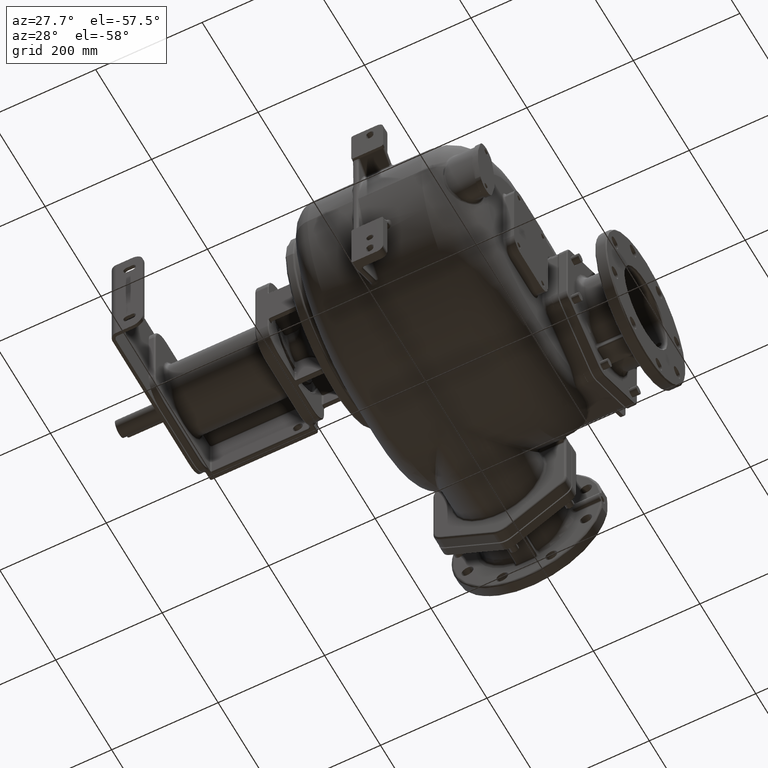
[diagram: clean part render]
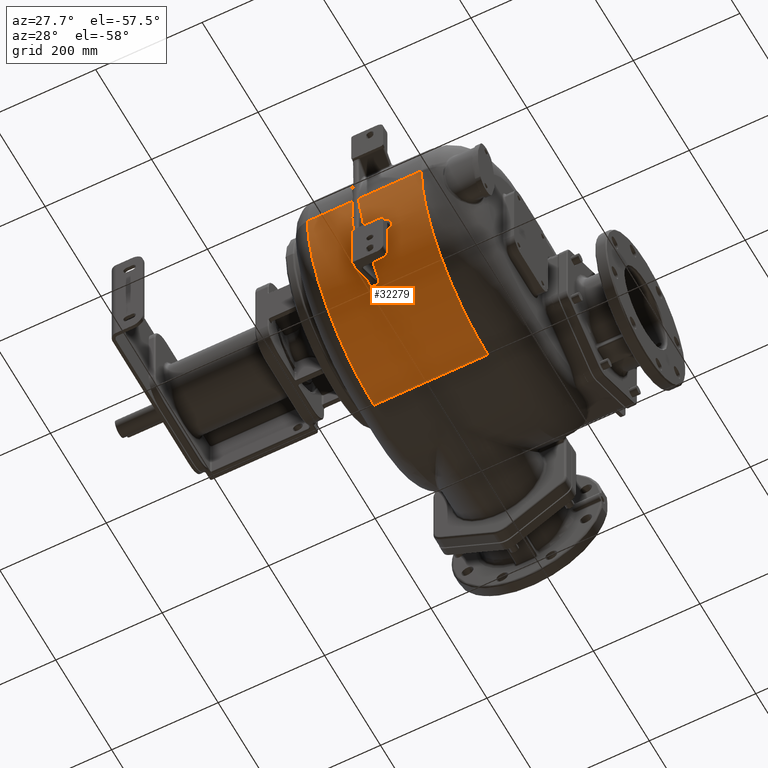
[diagram: same view with one face highlighted and labeled with its STEP entity id]
A machine part, auxiliary view. The second image highlights one B-rep face of the part: STEP entity #32279.
In plain terms, the highlighted cylindrical surface (partial cylindrical patch) has radius 238 mm, axis along (-1, 0, 0).
Its self-contained STEP definition (entity closure, byte-faithful):
#6964=DIRECTION('',(-9.999999999999E-1,-3.922041858622E-7,-4.513141593375E-11));
#6965=VECTOR('',#6964,8.512701665594E1);
#6966=CARTESIAN_POINT('',(-3.487298334407E1,5.000033387172E0,
-1.299999999617E1));
#6967=LINE('',#6966,#6965);
#6978=DIRECTION('',(-1.E0,2.893217573782E-7,-2.821944856275E-11));
#6979=VECTOR('',#6978,1.181270166560E2);
#6980=CARTESIAN_POINT('',(9.4E1,5.E0,-1.300000000004E1));
#6981=LINE('',#6980,#6979);
#7254=CARTESIAN_POINT('',(-3.487298334407E1,5.000033387172E0,
-1.299999999617E1));
#7255=CARTESIAN_POINT('',(-3.487332535110E1,5.000076042464E0,
-1.369852855020E1));
#7256=CARTESIAN_POINT('',(-3.488625641344E1,5.006151664949E0,
-1.512043404627E1));
#7257=CARTESIAN_POINT('',(-3.494085451460E1,5.035539256813E0,
-1.731015029306E1));
#7258=CARTESIAN_POINT('',(-3.503386178475E1,5.087860928933E0,
-1.960903720853E1));
#7259=CARTESIAN_POINT('',(-3.516891551642E1,5.167661207005E0,
-2.205013471588E1));
#7260=CARTESIAN_POINT('',(-3.535147360663E1,5.281194993081E0,
-2.467257113644E1));
#7261=CARTESIAN_POINT('',(-3.558642737679E1,5.436513644653E0,
-2.750846466196E1));
#7262=CARTESIAN_POINT('',(-3.587448628616E1,5.642747172982E0,
-3.057691238464E1));
#7263=CARTESIAN_POINT('',(-3.621480318520E1,5.911561748767E0,
-3.390752537193E1));
#7264=CARTESIAN_POINT('',(-3.659761215140E1,6.254386252305E0,
-3.749567271010E1));
#7265=CARTESIAN_POINT('',(-3.699440787981E1,6.663286226819E0,
-4.116837732563E1));
#7266=CARTESIAN_POINT('',(-3.737541264840E1,7.119090398356E0,
-4.475535152115E1));
#7267=CARTESIAN_POINT('',(-3.772540349546E1,7.609571564118E0,
-4.820251676713E1));
#7268=CARTESIAN_POINT('',(-3.803676824961E1,8.125632024676E0,
-5.149077304522E1));
#7269=CARTESIAN_POINT('',(-3.830476451348E1,8.658069082577E0,
-5.460545228396E1));
#7270=CARTESIAN_POINT('',(-3.852812990866E1,9.200932212432E0,
-5.755135906392E1));
#7271=CARTESIAN_POINT('',(-3.870666032480E1,9.748104384360E0,
-6.032941512412E1));
#7272=CARTESIAN_POINT('',(-3.884190270636E1,1.029458392802E1,
-6.294425747014E1));
#7273=CARTESIAN_POINT('',(-3.893508807572E1,1.083585341209E1,
-6.540026104949E1));
#7274=CARTESIAN_POINT('',(-3.898873278251E1,1.136776381419E1,
-6.770149815791E1));
#7275=CARTESIAN_POINT('',(-3.899997952555E1,1.171402944938E1,
-6.913644806690E1));
#7276=CARTESIAN_POINT('',(-3.899999999943E1,1.188431873015E1,
-6.982896686279E1));
#7278=CARTESIAN_POINT('',(-3.9E1,2.43E2,-1.3E1));
#7279=DIRECTION('',(1.E0,0.E0,0.E0));
#7280=DIRECTION('',(0.E0,-9.710743801653E-1,-2.387771936065E-1));
#7281=AXIS2_PLACEMENT_3D('',#7278,#7279,#7280);
#7283=CARTESIAN_POINT('',(-3.899999999980E1,6.888906075237E1,
-1.752632804800E2));
#7284=CARTESIAN_POINT('',(-3.900000178895E1,6.895656478788E1,
-1.753357052236E2));
#7285=CARTESIAN_POINT('',(-3.899646586419E1,6.909158909080E1,
-1.754804580390E2));
#7286=CARTESIAN_POINT('',(-3.898020895290E1,6.929445461058E1,
-1.756973000808E2));
#7287=CARTESIAN_POINT('',(-3.895318271723E1,6.949719011402E1,
-1.759134878866E2));
#7288=CARTESIAN_POINT('',(-3.891537244181E1,6.969955202654E1,
-1.761287332274E2));
#7289=CARTESIAN_POINT('',(-3.886682680016E1,6.990123578678E1,
-1.763427271589E2));
#7290=CARTESIAN_POINT('',(-3.880758686656E1,7.010195078852E1,
-1.765551675793E2));
#7291=CARTESIAN_POINT('',(-3.873770769350E1,7.030140075133E1,
-1.767657522817E2));
#7292=CARTESIAN_POINT('',(-3.865724194588E1,7.049929089173E1,
-1.769741827594E2));
#7293=CARTESIAN_POINT('',(-3.856633166443E1,7.069531926278E1,
-1.771801560167E2));
#7294=CARTESIAN_POINT('',(-3.846514287816E1,7.088918229110E1,
-1.773833701063E2));
#7295=CARTESIAN_POINT('',(-3.835384651645E1,7.108057837637E1,
-1.775835278731E2));
#7296=CARTESIAN_POINT('',(-3.823262355415E1,7.126920656600E1,
-1.777803354125E2));
#7297=CARTESIAN_POINT('',(-3.810166730310E1,7.145476349393E1,
-1.779734987764E2));
#7298=CARTESIAN_POINT('',(-3.796117545493E1,7.163695336761E1,
-1.781627342142E2));
#7299=CARTESIAN_POINT('',(-3.781136711366E1,7.181547469736E1,
-1.783477542448E2));
#7300=CARTESIAN_POINT('',(-3.765239857441E1,7.199009165340E1,
-1.785283413037E2));
#7301=CARTESIAN_POINT('',(-3.748446854684E1,7.216062131279E1,
-1.787043336583E2));
#7302=CARTESIAN_POINT('',(-3.730780431674E1,7.232688118568E1,
-1.788755707891E2));
#7303=CARTESIAN_POINT('',(-3.712261687219E1,7.248867746011E1,
-1.790418811473E2));
#7304=CARTESIAN_POINT('',(-3.692929042815E1,7.264567267945E1,
-1.792029466471E2));
#7305=CARTESIAN_POINT('',(-3.672821179213E1,7.279755771084E1,
-1.793584798720E2));
#7306=CARTESIAN_POINT('',(-3.651982123675E1,7.294401118769E1,
-1.795081821428E2));
#7307=CARTESIAN_POINT('',(-3.630440846733E1,7.308484562613E1,
-1.796518924495E2));
#7308=CARTESIAN_POINT('',(-3.608204424356E1,7.321998321375E1,
-1.797895613261E2));
#7309=CARTESIAN_POINT('',(-3.585288575298E1,7.334933536140E1,
-1.799211275432E2));
#7310=CARTESIAN_POINT('',(-3.561708672570E1,7.347284584958E1,
-1.800465618510E2));
#7311=CARTESIAN_POINT('',(-3.537517542224E1,7.359023582020E1,
-1.801656083458E2));
#7312=CARTESIAN_POINT('',(-3.512772651156E1,7.370123982364E1,
-1.802780249391E2));
#7313=CARTESIAN_POINT('',(-3.487535966191E1,7.380560322044E1,
-1.803835803298E2));
#7314=CARTESIAN_POINT('',(-3.461854599973E1,7.390316204359E1,
-1.804821344332E2));
#7315=CARTESIAN_POINT('',(-3.435738808636E1,7.399388794282E1,
-1.805736829100E2));
#7316=CARTESIAN_POINT('',(-3.409202182421E1,7.407769479246E1,
-1.806581615419E2));
#7317=CARTESIAN_POINT('',(-3.382256271717E1,7.415452583842E1,
-1.807355342758E2));
#7318=CARTESIAN_POINT('',(-3.354933744492E1,7.422434921785E1,
-1.808057884703E2));
#7319=CARTESIAN_POINT('',(-3.327269457322E1,7.428709599987E1,
-1.808688725364E2));
#7320=CARTESIAN_POINT('',(-3.299294963796E1,7.434269846426E1,
-1.809247344440E2));
#7321=CARTESIAN_POINT('',(-3.271049059383E1,7.439106095828E1,
-1.809732925979E2));
#7322=CARTESIAN_POINT('',(-3.242606176194E1,7.443203780044E1,
-1.810144129686E2));
#7323=CARTESIAN_POINT('',(-3.214037630943E1,7.446552642337E1,
-1.810480052996E2));
#7324=CARTESIAN_POINT('',(-3.185415438625E1,7.449144032876E1,
-1.810739854161E2));
#7325=CARTESIAN_POINT('',(-3.156814278833E1,7.450977036486E1,
-1.810923752748E2));
#7326=CARTESIAN_POINT('',(-3.128300957743E1,7.452055699754E1,
-1.811031305012E2));
#7327=CARTESIAN_POINT('',(-3.109416571180E1,7.452305344983E1,
-1.811057715726E2));
#7328=CARTESIAN_POINT('',(-3.100000001687E1,7.452303650173E1,
-1.811057691184E2));
#7330=DIRECTION('',(9.999999999980E-1,1.407185204663E-6,1.403730886977E-6));
#7331=VECTOR('',#7330,3.000000029967E0);
#7332=CARTESIAN_POINT('',(-3.100000001687E1,7.452303650173E1,
-1.811057691184E2));
#7333=LINE('',#7332,#7331);
#7334=CARTESIAN_POINT('',(-2.799999998691E1,7.452304072328E1,
-1.811057649072E2));
#7335=CARTESIAN_POINT('',(-2.790586306895E1,7.452305457010E1,
-1.811057665749E2));
#7336=CARTESIAN_POINT('',(-2.771708016693E1,7.452057344447E1,
-1.811031498254E2));
#7337=CARTESIAN_POINT('',(-2.743205461887E1,7.450977998007E1,
-1.810923841517E2));
#7338=CARTESIAN_POINT('',(-2.714614915088E1,7.449146372303E1,
-1.810740090731E2));
#7339=CARTESIAN_POINT('',(-2.686002077320E1,7.446556956401E1,
-1.810480485083E2));
#7340=CARTESIAN_POINT('',(-2.657440715427E1,7.443209817631E1,
-1.810144735557E2));
#7341=CARTESIAN_POINT('',(-2.629001739888E1,7.439113594152E1,
-1.809733678586E2));
#7342=CARTESIAN_POINT('',(-2.600755565111E1,7.434278215658E1,
-1.809248185016E2));
#7343=CARTESIAN_POINT('',(-2.572775345006E1,7.428717775516E1,
-1.808689547041E2));
#7344=CARTESIAN_POINT('',(-2.545102235463E1,7.422442057927E1,
-1.808058602475E2));
#7345=CARTESIAN_POINT('',(-2.517770766774E1,7.415458504391E1,
-1.807355938762E2));
#7346=CARTESIAN_POINT('',(-2.490818663393E1,7.407774984677E1,
-1.806582170095E2));
#7347=CARTESIAN_POINT('',(-2.464280379632E1,7.399395679678E1,
-1.805737523464E2));
#7348=CARTESIAN_POINT('',(-2.438166352632E1,7.390324949076E1,
-1.804822227155E2));
#7349=CARTESIAN_POINT('',(-2.412488469042E1,7.380571377383E1,
-1.803836920694E2));
#7350=CARTESIAN_POINT('',(-2.387255284162E1,7.370137270123E1,
-1.802781594129E2));
#7351=CARTESIAN_POINT('',(-2.362512774669E1,7.359038629218E1,
-1.801657608308E2));
#7352=CARTESIAN_POINT('',(-2.338322604127E1,7.347300779798E1,
-1.800467262003E2));
#7353=CARTESIAN_POINT('',(-2.314741740086E1,7.334950016313E1,
-1.799212950410E2));
#7354=CARTESIAN_POINT('',(-2.291822899214E1,7.322014071672E1,
-1.797897216581E2));
#7355=CARTESIAN_POINT('',(-2.269582326388E1,7.308499204324E1,
-1.796520417409E2));
#7356=CARTESIAN_POINT('',(-2.248037294394E1,7.294414382603E1,
-1.795083176145E2));
#7357=CARTESIAN_POINT('',(-2.227195732943E1,7.279768124889E1,
-1.793586062678E2));
#7358=CARTESIAN_POINT('',(-2.207086523597E1,7.264579332704E1,
-1.792030703089E2));
#7359=CARTESIAN_POINT('',(-2.187752885224E1,7.248879707346E1,
-1.790420039808E2));
#7360=CARTESIAN_POINT('',(-2.169232958904E1,7.232699797671E1,
-1.788756909619E2));
#7361=CARTESIAN_POINT('',(-2.151564643822E1,7.216072876848E1,
-1.787044444519E2));
#7362=CARTESIAN_POINT('',(-2.134769532409E1,7.199018720232E1,
-1.785284400250E2));
#7363=CARTESIAN_POINT('',(-2.118870602481E1,7.181556055574E1,
-1.783478431391E2));
#7364=CARTESIAN_POINT('',(-2.103888613243E1,7.163703600909E1,
-1.781628199570E2));
#7365=CARTESIAN_POINT('',(-2.089839169043E1,7.145485110486E1,
-1.779735898716E2));
#7366=CARTESIAN_POINT('',(-2.076743571085E1,7.126930193924E1,
-1.777804348022E2));
#7367=CARTESIAN_POINT('',(-2.064621217609E1,7.108067997195E1,
-1.775836339944E2));
#7368=CARTESIAN_POINT('',(-2.053491094687E1,7.088928274604E1,
-1.773834752873E2));
#7369=CARTESIAN_POINT('',(-2.043371417461E1,7.069541200209E1,
-1.771802533535E2));
#7370=CARTESIAN_POINT('',(-2.034279459927E1,7.049937192414E1,
-1.769742680162E2));
#7371=CARTESIAN_POINT('',(-2.026231859618E1,7.030146852536E1,
-1.767658237636E2));
#7372=CARTESIAN_POINT('',(-2.019243100726E1,7.010200573175E1,
-1.765552256722E2));
#7373=CARTESIAN_POINT('',(-2.013318498674E1,6.990127840358E1,
-1.763427723304E2));
#7374=CARTESIAN_POINT('',(-2.008463501421E1,6.969958320677E1,
-1.761287663653E2));
#7375=CARTESIAN_POINT('',(-2.004682187771E1,6.949721103363E1,
-1.759135101600E2));
#7376=CARTESIAN_POINT('',(-2.001979371458E1,6.929446666817E1,
-1.756973130152E2));
#7377=CARTESIAN_POINT('',(-2.000353584216E1,6.909159410560E1,
-1.754804632109E2));
#7378=CARTESIAN_POINT('',(-1.999999850985E1,6.895656601066E1,
-1.753357069696E2));
#7379=CARTESIAN_POINT('',(-2.000000000021E1,6.888906069088E1,
-1.752632805471E2));
#7381=CARTESIAN_POINT('',(-2.E1,2.43E2,-1.3E1));
#7382=DIRECTION('',(-1.E0,0.E0,0.E0));
#7383=DIRECTION('',(0.E0,-7.315586240582E-1,-6.817785414385E-1));
#7384=AXIS2_PLACEMENT_3D('',#7381,#7382,#7383);
#7386=DIRECTION('',(9.999999851231E-1,-1.221343050631E-4,-1.218074938089E-4));
#7387=VECTOR('',#7386,4.100000059940E1);
#7388=CARTESIAN_POINT('',(-2.E1,2.569675366516E1,-1.101220876151E2));
#7389=LINE('',#7388,#7387);
#7390=CARTESIAN_POINT('',(2.1E1,2.571170350596E1,-1.101071377743E2));
#7391=CARTESIAN_POINT('',(2.109189192045E1,2.571169003411E1,-1.101071524329E2));
#7392=CARTESIAN_POINT('',(2.127569258411E1,2.571036235640E1,-1.101041160931E2));
#7393=CARTESIAN_POINT('',(2.155161343405E1,2.570420663706E1,-1.100903671726E2));
#7394=CARTESIAN_POINT('',(2.182724594771E1,2.569396778949E1,-1.100674423900E2));
#7395=CARTESIAN_POINT('',(2.210225540456E1,2.567962369897E1,-1.100353268414E2));
#7396=CARTESIAN_POINT('',(2.237625528972E1,2.566118771715E1,-1.099940281188E2));
#7397=CARTESIAN_POINT('',(2.264886913852E1,2.563867147433E1,-1.099435612732E2));
#7398=CARTESIAN_POINT('',(2.291972019248E1,2.561209443667E1,-1.098839519902E2));
#7399=CARTESIAN_POINT('',(2.318842098537E1,2.558147971238E1,-1.098152321389E2));
#7400=CARTESIAN_POINT('',(2.345468492054E1,2.554687042144E1,-1.097374753272E2));
#7401=CARTESIAN_POINT('',(2.371825467717E1,2.550830526591E1,-1.096507425551E2));
#7402=CARTESIAN_POINT('',(2.397885559759E1,2.546582438473E1,-1.095550953145E2));
#7403=CARTESIAN_POINT('',(2.423620902047E1,2.541946792977E1,-1.094505924776E2));
#7404=CARTESIAN_POINT('',(2.448998538206E1,2.536928572645E1,-1.093373121752E2));
#7405=CARTESIAN_POINT('',(2.473985143630E1,2.531533020955E1,-1.092153360365E2));
#7406=CARTESIAN_POINT('',(2.498546568917E1,2.525765912407E1,-1.090847554396E2));
#7407=CARTESIAN_POINT('',(2.522650211946E1,2.519632034456E1,-1.089456372394E2));
#7408=CARTESIAN_POINT('',(2.546275366335E1,2.513135930686E1,-1.087980405045E2));
#7409=CARTESIAN_POINT('',(2.569400477694E1,2.506283539356E1,-1.086420539140E2));
#7410=CARTESIAN_POINT('',(2.592004406172E1,2.499079645679E1,-1.084777379143E2));
#7411=CARTESIAN_POINT('',(2.614052428298E1,2.491533165640E1,-1.083052453837E2));
#7412=CARTESIAN_POINT('',(2.635503226123E1,2.483656045529E1,-1.081247976347E2));
#7413=CARTESIAN_POINT('',(2.656317460865E1,2.475460513783E1,-1.079366221355E2));
#7414=CARTESIAN_POINT('',(2.676456353899E1,2.466959754907E1,-1.077409684607E2));
#7415=CARTESIAN_POINT('',(2.695896417522E1,2.458160114578E1,-1.075379286240E2));
#7416=CARTESIAN_POINT('',(2.714615886352E1,2.449068286169E1,-1.073276015815E2));
#7417=CARTESIAN_POINT('',(2.732598723723E1,2.439691050664E1,-1.071100875102E2));
#7418=CARTESIAN_POINT('',(2.749820676899E1,2.430037656740E1,-1.068855431910E2));
#7419=CARTESIAN_POINT('',(2.766245516240E1,2.420124728475E1,-1.066542977932E2));
#7420=CARTESIAN_POINT('',(2.781840322104E1,2.409968417487E1,-1.064166717284E2));
#7421=CARTESIAN_POINT('',(2.796571702999E1,2.399586639674E1,-1.061730293234E2));
#7422=CARTESIAN_POINT('',(2.810413912630E1,2.388993207433E1,-1.059236414691E2));
#7423=CARTESIAN_POINT('',(2.823342894410E1,2.378200121283E1,-1.056687383822E2));
#7424=CARTESIAN_POINT('',(2.835334328114E1,2.367220159937E1,-1.054085706995E2));
#7425=CARTESIAN_POINT('',(2.846371590351E1,2.356066020007E1,-1.051433894735E2));
#7426=CARTESIAN_POINT('',(2.856435245707E1,2.344752383521E1,-1.048734957363E2));
#7427=CARTESIAN_POINT('',(2.865506102179E1,2.333294543140E1,-1.045992086568E2));
#7428=CARTESIAN_POINT('',(2.873565752849E1,2.321707252537E1,-1.043208382536E2));
#7429=CARTESIAN_POINT('',(2.880593673246E1,2.310009178919E1,-1.040387927926E2));
#7430=CARTESIAN_POINT('',(2.886567675280E1,2.298226527209E1,-1.037536688552E2));
#7431=CARTESIAN_POINT('',(2.891470231159E1,2.286384648883E1,-1.034660510674E2));
#7432=CARTESIAN_POINT('',(2.895288124785E1,2.274509301060E1,-1.031765418069E2));
#7433=CARTESIAN_POINT('',(2.898012813384E1,2.262626085754E1,-1.028857510141E2));
#7434=CARTESIAN_POINT('',(2.899652534321E1,2.250757343094E1,-1.025942090108E2));
#7435=CARTESIAN_POINT('',(2.899999628593E1,2.242876430921E1,-1.023999002770E2));
#7436=CARTESIAN_POINT('',(2.9E1,2.238942505554E1,-1.023027111720E2));
#7438=CARTESIAN_POINT('',(2.9E1,2.43E2,-1.3E1));
#7439=DIRECTION('',(-1.E0,0.E0,0.E0));
#7440=DIRECTION('',(0.E0,-9.269351888423E-1,-3.752214755127E-1));
#7441=AXIS2_PLACEMENT_3D('',#7438,#7439,#7440);
#7443=CARTESIAN_POINT('',(2.899999999971E1,2.159528512213E1,-1.003151870831E2));
#7444=CARTESIAN_POINT('',(2.900001542195E1,2.155636867477E1,-1.002164615708E2));
#7445=CARTESIAN_POINT('',(2.899647100975E1,2.147853949860E1,-1.000188767239E2));
#7446=CARTESIAN_POINT('',(2.897988019374E1,2.136205542564E1,-9.972169985983E1));
#7447=CARTESIAN_POINT('',(2.895219818804E1,2.124601267414E1,-9.942455422656E1));
#7448=CARTESIAN_POINT('',(2.891337151908E1,2.113064158208E1,-9.912793551030E1));
#7449=CARTESIAN_POINT('',(2.886345741624E1,2.101615611261E1,-9.883243202116E1));
#7450=CARTESIAN_POINT('',(2.880253269141E1,2.090276960351E1,-9.853860563760E1));
#7451=CARTESIAN_POINT('',(2.873071873344E1,2.079068860157E1,-9.824701843387E1));
#7452=CARTESIAN_POINT('',(2.864817866981E1,2.068011323783E1,-9.795822187211E1));
#7453=CARTESIAN_POINT('',(2.855510441449E1,2.057123097133E1,-9.767274302559E1));
#7454=CARTESIAN_POINT('',(2.845171596886E1,2.046422613466E1,-9.739110819794E1));
#7455=CARTESIAN_POINT('',(2.833825936285E1,2.035927478975E1,-9.711382922352E1));
#7456=CARTESIAN_POINT('',(2.821500798318E1,2.025654455355E1,-9.684140248936E1));
#7457=CARTESIAN_POINT('',(2.808220070377E1,2.015614912040E1,-9.657418693421E1));
#7458=CARTESIAN_POINT('',(2.794008512658E1,2.005819559712E1,-9.631252778179E1));
#7459=CARTESIAN_POINT('',(2.778891497724E1,1.996278094119E1,-9.605674660301E1));
#7460=CARTESIAN_POINT('',(2.762897097822E1,1.987000407098E1,-9.580717317169E1));
#7461=CARTESIAN_POINT('',(2.746059203224E1,1.977997843597E1,-9.556417939922E1));
#7462=CARTESIAN_POINT('',(2.728416548145E1,1.969281751597E1,-9.532814041387E1));
#7463=CARTESIAN_POINT('',(2.710010031604E1,1.960862969680E1,-9.509942031950E1));
#7464=CARTESIAN_POINT('',(2.690878087824E1,1.952750067147E1,-9.487832359571E1));
#7465=CARTESIAN_POINT('',(2.671057990101E1,1.944950210649E1,-9.466511751762E1));
#7466=CARTESIAN_POINT('',(2.650587136759E1,1.937469801638E1,-9.446004878498E1));
#7467=CARTESIAN_POINT('',(2.629503366634E1,1.930314382382E1,-9.426334055149E1));
#7468=CARTESIAN_POINT('',(2.607823002319E1,1.923481868514E1,-9.407500485599E1));
#7469=CARTESIAN_POINT('',(2.585558987942E1,1.916970766580E1,-9.389506703162E1));
#7470=CARTESIAN_POINT('',(2.562724530307E1,1.910778158031E1,-9.372351004681E1));
#7471=CARTESIAN_POINT('',(2.539357083978E1,1.904907635422E1,-9.356049442626E1));
#7472=CARTESIAN_POINT('',(2.515533914644E1,1.899372365191E1,-9.340644599442E1));
#7473=CARTESIAN_POINT('',(2.491324361682E1,1.894181174640E1,-9.326166982356E1));
#7474=CARTESIAN_POINT('',(2.466811733480E1,1.889343539230E1,-9.312648803908E1));
#7475=CARTESIAN_POINT('',(2.442014086152E1,1.884854756825E1,-9.300082416450E1));
#7476=CARTESIAN_POINT('',(2.416914812173E1,1.880706310060E1,-9.288448989723E1));
#7477=CARTESIAN_POINT('',(2.391498125705E1,1.876893536388E1,-9.277740025490E1));
#7478=CARTESIAN_POINT('',(2.365746470244E1,1.873412572619E1,-9.267948858906E1));
#7479=CARTESIAN_POINT('',(2.339695840373E1,1.870260727294E1,-9.259071723868E1));
#7480=CARTESIAN_POINT('',(2.313377611557E1,1.867437200469E1,-9.251109818403E1));
#7481=CARTESIAN_POINT('',(2.286816588127E1,1.864941789667E1,-9.244065659854E1));
#7482=CARTESIAN_POINT('',(2.260057973005E1,1.862777525229E1,-9.237950607372E1));
#7483=CARTESIAN_POINT('',(2.233187392909E1,1.860950279671E1,-9.232783532684E1));
#7484=CARTESIAN_POINT('',(2.206283509521E1,1.859463231007E1,-9.228576124320E1));
#7485=CARTESIAN_POINT('',(2.179426139687E1,1.858320206925E1,-9.225338686971E1));
#7486=CARTESIAN_POINT('',(2.152696565740E1,1.857516284010E1,-9.223067037772E1));
#7487=CARTESIAN_POINT('',(2.126169499982E1,1.857065849062E1,-9.221771421668E1));
#7488=CARTESIAN_POINT('',(2.108692599425E1,1.856929355815E1,-9.221433383255E1));
#7489=CARTESIAN_POINT('',(2.100000007627E1,1.856928609625E1,-9.221438635292E1));
#7491=DIRECTION('',(-9.999999999946E-1,3.109097622656E-6,1.097811481817E-6));
#7492=VECTOR('',#7491,4.100000007649E1);
#7493=CARTESIAN_POINT('',(2.100000007627E1,1.856928609625E1,-9.221438635292E1));
#7494=LINE('',#7493,#7492);
#7495=CARTESIAN_POINT('',(-2.E1,2.43E2,-1.3E1));
#7496=DIRECTION('',(-1.E0,0.E0,0.E0));
#7497=DIRECTION('',(0.E0,-9.429856572723E-1,-3.328333669852E-1));
#7498=AXIS2_PLACEMENT_3D('',#7495,#7496,#7497);
#7500=CARTESIAN_POINT('',(-2.000000000066E1,1.188432009821E1,
-6.982896652506E1));
#7501=CARTESIAN_POINT('',(-2.000001689187E1,1.171416615510E1,
-6.913699258533E1));
#7502=CARTESIAN_POINT('',(-2.001123721762E1,1.136812889026E1,
-6.770303105982E1));
#7503=CARTESIAN_POINT('',(-2.006485028118E1,1.083645683370E1,
-6.540291723895E1));
#7504=CARTESIAN_POINT('',(-2.015792367071E1,1.029535112461E1,
-6.294781793645E1));
#7505=CARTESIAN_POINT('',(-2.029308660886E1,9.748984187142E0,
-6.033373680645E1));
#7506=CARTESIAN_POINT('',(-2.047153339609E1,9.201898550444E0,-5.755641246E1));
#7507=CARTESIAN_POINT('',(-2.069475281529E1,8.659100847812E0,
-5.461125062631E1));
#7508=CARTESIAN_POINT('',(-2.096265312222E1,8.126674255431E0,
-5.149710575110E1));
#7509=CARTESIAN_POINT('',(-2.127393761687E1,7.610570674618E0,
-4.820924419179E1));
#7510=CARTESIAN_POINT('',(-2.162404480685E1,7.119798953262E0,
-4.476056404803E1));
#7511=CARTESIAN_POINT('',(-2.200457658852E1,6.664443579681E0,
-4.117789356016E1));
#7512=CARTESIAN_POINT('',(-2.240132958140E1,6.255477877210E0,
-3.750635728616E1));
#7513=CARTESIAN_POINT('',(-2.278467682275E1,5.911864471423E0,
-3.391153760072E1));
#7514=CARTESIAN_POINT('',(-2.312590310681E1,5.642286156677E0,
-3.057101563167E1));
#7515=CARTESIAN_POINT('',(-2.341399216697E1,5.436176631501E0,
-2.750273524165E1));
#7516=CARTESIAN_POINT('',(-2.364881271471E1,5.281071750154E0,
-2.466982534549E1));
#7517=CARTESIAN_POINT('',(-2.383129597011E1,5.167678253721E0,
-2.205034018063E1));
#7518=CARTESIAN_POINT('',(-2.396622260233E1,5.087928294632E0,
-1.961128354528E1));
#7519=CARTESIAN_POINT('',(-2.405915374382E1,5.035598399547E0,
-1.731335563728E1));
#7520=CARTESIAN_POINT('',(-2.411372076623E1,5.006171268852E0,
-1.512314762070E1));
#7521=CARTESIAN_POINT('',(-2.412667657445E1,5.000076563087E0,
-1.369962954974E1));
#7522=CARTESIAN_POINT('',(-2.412701665602E1,5.000034176716E0,
-1.300000000338E1));
#7524=CARTESIAN_POINT('',(9.4E1,2.43E2,-1.3E1));
#7525=DIRECTION('',(1.E0,0.E0,0.E0));
#7526=DIRECTION('',(0.E0,-1.E0,0.E0));
#7527=AXIS2_PLACEMENT_3D('',#7524,#7525,#7526);
#7529=DIRECTION('',(1.E0,-5.046845599791E-14,0.E0));
#7530=VECTOR('',#7529,2.14E2);
#7531=CARTESIAN_POINT('',(-1.2E2,2.43E2,-2.51E2));
#7532=LINE('',#7531,#7530);
#7533=CARTESIAN_POINT('',(-1.2E2,2.43E2,-1.3E1));
#7534=DIRECTION('',(-1.E0,0.E0,0.E0));
#7535=DIRECTION('',(0.E0,0.E0,-1.E0));
#7536=AXIS2_PLACEMENT_3D('',#7533,#7534,#7535);
#21623=CARTESIAN_POINT('',(-1.2E2,2.43E2,-2.51E2));
#21624=CARTESIAN_POINT('',(9.4E1,2.43E2,-2.51E2));
#21625=VERTEX_POINT('',#21623);
#21626=VERTEX_POINT('',#21624);
#21717=CARTESIAN_POINT('',(-1.2E2,5.E0,-1.3E1));
#21718=VERTEX_POINT('',#21717);
#21735=CARTESIAN_POINT('',(9.4E1,5.E0,-1.3E1));
#21736=VERTEX_POINT('',#21735);
#22176=CARTESIAN_POINT('',(-3.487298334407E1,5.000033387172E0,
-1.299999999617E1));
#22177=VERTEX_POINT('',#22176);
#22257=VERTEX_POINT('',#7276);
#22258=CARTESIAN_POINT('',(-3.9E1,6.888904747414E1,-1.752632928624E2));
#22259=VERTEX_POINT('',#22258);
#22260=VERTEX_POINT('',#7328);
#22261=CARTESIAN_POINT('',(-2.799999998691E1,7.452304072328E1,
-1.811057649072E2));
#22262=VERTEX_POINT('',#22261);
#22263=VERTEX_POINT('',#7379);
#22264=CARTESIAN_POINT('',(-2.E1,2.571170350596E1,-1.101071377743E2));
#22265=VERTEX_POINT('',#22264);
#22269=CARTESIAN_POINT('',(2.099999998944E1,2.569174615858E1,
-1.101270817224E2));
#22270=VERTEX_POINT('',#22269);
#22271=VERTEX_POINT('',#7436);
#22272=CARTESIAN_POINT('',(2.9E1,2.159526492240E1,-1.003151950420E2));
#22273=VERTEX_POINT('',#22272);
#22276=VERTEX_POINT('',#7489);
#22278=CARTESIAN_POINT('',(-2.E1,1.856941356925E1,-9.221434134265E1));
#22279=VERTEX_POINT('',#22278);
#22284=CARTESIAN_POINT('',(-2.E1,1.188429752066E1,-6.982897207835E1));
#22285=VERTEX_POINT('',#22284);
#22288=VERTEX_POINT('',#7522);
#32240=CARTESIAN_POINT('',(-1.56E2,2.43E2,-1.3E1));
#32241=DIRECTION('',(-1.E0,0.E0,0.E0));
#32242=DIRECTION('',(0.E0,0.E0,1.E0));
#32243=AXIS2_PLACEMENT_3D('',#32240,#32241,#32242);
#32244=CYLINDRICAL_SURFACE('',#32243,2.38E2);
#32245=ORIENTED_EDGE('',*,*,#32203,.F.);
#32247=ORIENTED_EDGE('',*,*,#32246,.T.);
#32249=ORIENTED_EDGE('',*,*,#32248,.T.);
#32251=ORIENTED_EDGE('',*,*,#32250,.T.);
#32253=ORIENTED_EDGE('',*,*,#32252,.T.);
#32255=ORIENTED_EDGE('',*,*,#32254,.T.);
#32257=ORIENTED_EDGE('',*,*,#32256,.T.);
#32259=ORIENTED_EDGE('',*,*,#32258,.T.);
#32261=ORIENTED_EDGE('',*,*,#32260,.T.);
#32263=ORIENTED_EDGE('',*,*,#32262,.T.);
#32265=ORIENTED_EDGE('',*,*,#32264,.T.);
#32267=ORIENTED_EDGE('',*,*,#32266,.T.);
#32269=ORIENTED_EDGE('',*,*,#32268,.T.);
#32271=ORIENTED_EDGE('',*,*,#32270,.T.);
#32272=ORIENTED_EDGE('',*,*,#32209,.F.);
#32273=ORIENTED_EDGE('',*,*,#28921,.T.);
#32274=ORIENTED_EDGE('',*,*,#29706,.F.);
#32276=ORIENTED_EDGE('',*,*,#32275,.T.);
#32277=EDGE_LOOP('',(#32245,#32247,#32249,#32251,#32253,#32255,#32257,#32259,
#32261,#32263,#32265,#32267,#32269,#32271,#32272,#32273,#32274,#32276));
#32278=FACE_OUTER_BOUND('',#32277,.F.);
#32279=ADVANCED_FACE('',(#32278),#32244,.T.);
#7277=B_SPLINE_CURVE_WITH_KNOTS('',3,(#7254,#7255,#7256,#7257,#7258,#7259,#7260,
#7261,#7262,#7263,#7264,#7265,#7266,#7267,#7268,#7269,#7270,#7271,#7272,#7273,
#7274,#7275,#7276),.UNSPECIFIED.,.F.,.F.,(4,1,1,1,1,1,1,1,1,1,1,1,1,1,1,1,1,1,1,
1,4),(0.E0,5.E-2,1.E-1,1.5E-1,2.E-1,2.5E-1,3.E-1,3.5E-1,4.E-1,4.5E-1,5.E-1,
5.5E-1,6.E-1,6.5E-1,7.E-1,7.5E-1,8.E-1,8.5E-1,9.E-1,9.5E-1,1.E0),.UNSPECIFIED.);
#7282=CIRCLE('',#7281,2.38E2);
#7329=B_SPLINE_CURVE_WITH_KNOTS('',3,(#7283,#7284,#7285,#7286,#7287,#7288,#7289,
#7290,#7291,#7292,#7293,#7294,#7295,#7296,#7297,#7298,#7299,#7300,#7301,#7302,
#7303,#7304,#7305,#7306,#7307,#7308,#7309,#7310,#7311,#7312,#7313,#7314,#7315,
#7316,#7317,#7318,#7319,#7320,#7321,#7322,#7323,#7324,#7325,#7326,#7327,#7328),
.UNSPECIFIED.,.F.,.F.,(4,1,1,1,1,1,1,1,1,1,1,1,1,1,1,1,1,1,1,1,1,1,1,1,1,1,1,1,
1,1,1,1,1,1,1,1,1,1,1,1,1,1,1,4),(0.E0,2.325581395349E-2,4.651162790698E-2,
6.976744186047E-2,9.302325581395E-2,1.162790697674E-1,1.395348837209E-1,
1.627906976744E-1,1.860465116279E-1,2.093023255814E-1,2.325581395349E-1,
2.558139534884E-1,2.790697674419E-1,3.023255813953E-1,3.255813953488E-1,
3.488372093023E-1,3.720930232558E-1,3.953488372093E-1,4.186046511628E-1,
4.418604651163E-1,4.651162790698E-1,4.883720930233E-1,5.116279069767E-1,
5.348837209302E-1,5.581395348837E-1,5.813953488372E-1,6.046511627907E-1,
6.279069767442E-1,6.511627906977E-1,6.744186046512E-1,6.976744186047E-1,
7.209302325581E-1,7.441860465116E-1,7.674418604651E-1,7.906976744186E-1,
8.139534883721E-1,8.372093023256E-1,8.604651162791E-1,8.837209302326E-1,
9.069767441860E-1,9.302325581395E-1,9.534883720930E-1,9.767441860465E-1,1.E0),
.UNSPECIFIED.);
#7380=B_SPLINE_CURVE_WITH_KNOTS('',3,(#7334,#7335,#7336,#7337,#7338,#7339,#7340,
#7341,#7342,#7343,#7344,#7345,#7346,#7347,#7348,#7349,#7350,#7351,#7352,#7353,
#7354,#7355,#7356,#7357,#7358,#7359,#7360,#7361,#7362,#7363,#7364,#7365,#7366,
#7367,#7368,#7369,#7370,#7371,#7372,#7373,#7374,#7375,#7376,#7377,#7378,#7379),
.UNSPECIFIED.,.F.,.F.,(4,1,1,1,1,1,1,1,1,1,1,1,1,1,1,1,1,1,1,1,1,1,1,1,1,1,1,1,
1,1,1,1,1,1,1,1,1,1,1,1,1,1,1,4),(0.E0,2.325581395349E-2,4.651162790698E-2,
6.976744186047E-2,9.302325581395E-2,1.162790697674E-1,1.395348837209E-1,
1.627906976744E-1,1.860465116279E-1,2.093023255814E-1,2.325581395349E-1,
2.558139534884E-1,2.790697674419E-1,3.023255813953E-1,3.255813953488E-1,
3.488372093023E-1,3.720930232558E-1,3.953488372093E-1,4.186046511628E-1,
4.418604651163E-1,4.651162790698E-1,4.883720930233E-1,5.116279069767E-1,
5.348837209302E-1,5.581395348837E-1,5.813953488372E-1,6.046511627907E-1,
6.279069767442E-1,6.511627906977E-1,6.744186046512E-1,6.976744186047E-1,
7.209302325581E-1,7.441860465116E-1,7.674418604651E-1,7.906976744186E-1,
8.139534883721E-1,8.372093023256E-1,8.604651162791E-1,8.837209302326E-1,
9.069767441860E-1,9.302325581395E-1,9.534883720930E-1,9.767441860465E-1,1.E0),
.UNSPECIFIED.);
#7385=CIRCLE('',#7384,2.38E2);
#7437=B_SPLINE_CURVE_WITH_KNOTS('',3,(#7390,#7391,#7392,#7393,#7394,#7395,#7396,
#7397,#7398,#7399,#7400,#7401,#7402,#7403,#7404,#7405,#7406,#7407,#7408,#7409,
#7410,#7411,#7412,#7413,#7414,#7415,#7416,#7417,#7418,#7419,#7420,#7421,#7422,
#7423,#7424,#7425,#7426,#7427,#7428,#7429,#7430,#7431,#7432,#7433,#7434,#7435,
#7436),.UNSPECIFIED.,.F.,.F.,(4,1,1,1,1,1,1,1,1,1,1,1,1,1,1,1,1,1,1,1,1,1,1,1,1,
1,1,1,1,1,1,1,1,1,1,1,1,1,1,1,1,1,1,1,4),(0.E0,2.272727272727E-2,
4.545454545455E-2,6.818181818182E-2,9.090909090909E-2,1.136363636364E-1,
1.363636363636E-1,1.590909090909E-1,1.818181818182E-1,2.045454545455E-1,
2.272727272727E-1,2.5E-1,2.727272727273E-1,2.954545454545E-1,3.181818181818E-1,
3.409090909091E-1,3.636363636364E-1,3.863636363636E-1,4.090909090909E-1,
4.318181818182E-1,4.545454545455E-1,4.772727272727E-1,5.E-1,5.227272727273E-1,
5.454545454545E-1,5.681818181818E-1,5.909090909091E-1,6.136363636364E-1,
6.363636363636E-1,6.590909090909E-1,6.818181818182E-1,7.045454545455E-1,
7.272727272727E-1,7.5E-1,7.727272727273E-1,7.954545454545E-1,8.181818181818E-1,
8.409090909091E-1,8.636363636364E-1,8.863636363636E-1,9.090909090909E-1,
9.318181818182E-1,9.545454545455E-1,9.772727272727E-1,1.E0),.UNSPECIFIED.);
#7442=CIRCLE('',#7441,2.38E2);
#7490=B_SPLINE_CURVE_WITH_KNOTS('',3,(#7443,#7444,#7445,#7446,#7447,#7448,#7449,
#7450,#7451,#7452,#7453,#7454,#7455,#7456,#7457,#7458,#7459,#7460,#7461,#7462,
#7463,#7464,#7465,#7466,#7467,#7468,#7469,#7470,#7471,#7472,#7473,#7474,#7475,
#7476,#7477,#7478,#7479,#7480,#7481,#7482,#7483,#7484,#7485,#7486,#7487,#7488,
#7489),.UNSPECIFIED.,.F.,.F.,(4,1,1,1,1,1,1,1,1,1,1,1,1,1,1,1,1,1,1,1,1,1,1,1,1,
1,1,1,1,1,1,1,1,1,1,1,1,1,1,1,1,1,1,1,4),(0.E0,2.272727272727E-2,
4.545454545455E-2,6.818181818182E-2,9.090909090909E-2,1.136363636364E-1,
1.363636363636E-1,1.590909090909E-1,1.818181818182E-1,2.045454545455E-1,
2.272727272727E-1,2.5E-1,2.727272727273E-1,2.954545454545E-1,3.181818181818E-1,
3.409090909091E-1,3.636363636364E-1,3.863636363636E-1,4.090909090909E-1,
4.318181818182E-1,4.545454545455E-1,4.772727272727E-1,5.E-1,5.227272727273E-1,
5.454545454545E-1,5.681818181818E-1,5.909090909091E-1,6.136363636364E-1,
6.363636363636E-1,6.590909090909E-1,6.818181818182E-1,7.045454545455E-1,
7.272727272727E-1,7.5E-1,7.727272727273E-1,7.954545454545E-1,8.181818181818E-1,
8.409090909091E-1,8.636363636364E-1,8.863636363636E-1,9.090909090909E-1,
9.318181818182E-1,9.545454545455E-1,9.772727272727E-1,1.E0),.UNSPECIFIED.);
#7499=CIRCLE('',#7498,2.38E2);
#7523=B_SPLINE_CURVE_WITH_KNOTS('',3,(#7500,#7501,#7502,#7503,#7504,#7505,#7506,
#7507,#7508,#7509,#7510,#7511,#7512,#7513,#7514,#7515,#7516,#7517,#7518,#7519,
#7520,#7521,#7522),.UNSPECIFIED.,.F.,.F.,(4,1,1,1,1,1,1,1,1,1,1,1,1,1,1,1,1,1,1,
1,4),(0.E0,5.E-2,1.E-1,1.5E-1,2.E-1,2.5E-1,3.E-1,3.5E-1,4.E-1,4.5E-1,5.E-1,
5.5E-1,6.E-1,6.5E-1,7.E-1,7.5E-1,8.E-1,8.5E-1,9.E-1,9.5E-1,1.E0),.UNSPECIFIED.);
#7528=CIRCLE('',#7527,2.38E2);
#7537=CIRCLE('',#7536,2.38E2);
#28921=EDGE_CURVE('',#21736,#21626,#7528,.T.);
#29706=EDGE_CURVE('',#21625,#21626,#7532,.T.);
#32203=EDGE_CURVE('',#22177,#21718,#6967,.T.);
#32209=EDGE_CURVE('',#21736,#22288,#6981,.T.);
#32246=EDGE_CURVE('',#22177,#22257,#7277,.T.);
#32248=EDGE_CURVE('',#22257,#22259,#7282,.T.);
#32250=EDGE_CURVE('',#22259,#22260,#7329,.T.);
#32252=EDGE_CURVE('',#22260,#22262,#7333,.T.);
#32254=EDGE_CURVE('',#22262,#22263,#7380,.T.);
#32256=EDGE_CURVE('',#22263,#22265,#7385,.T.);
#32258=EDGE_CURVE('',#22265,#22270,#7389,.T.);
#32260=EDGE_CURVE('',#22270,#22271,#7437,.T.);
#32262=EDGE_CURVE('',#22271,#22273,#7442,.T.);
#32264=EDGE_CURVE('',#22273,#22276,#7490,.T.);
#32266=EDGE_CURVE('',#22276,#22279,#7494,.T.);
#32268=EDGE_CURVE('',#22279,#22285,#7499,.T.);
#32270=EDGE_CURVE('',#22285,#22288,#7523,.T.);
#32275=EDGE_CURVE('',#21625,#21718,#7537,.T.);